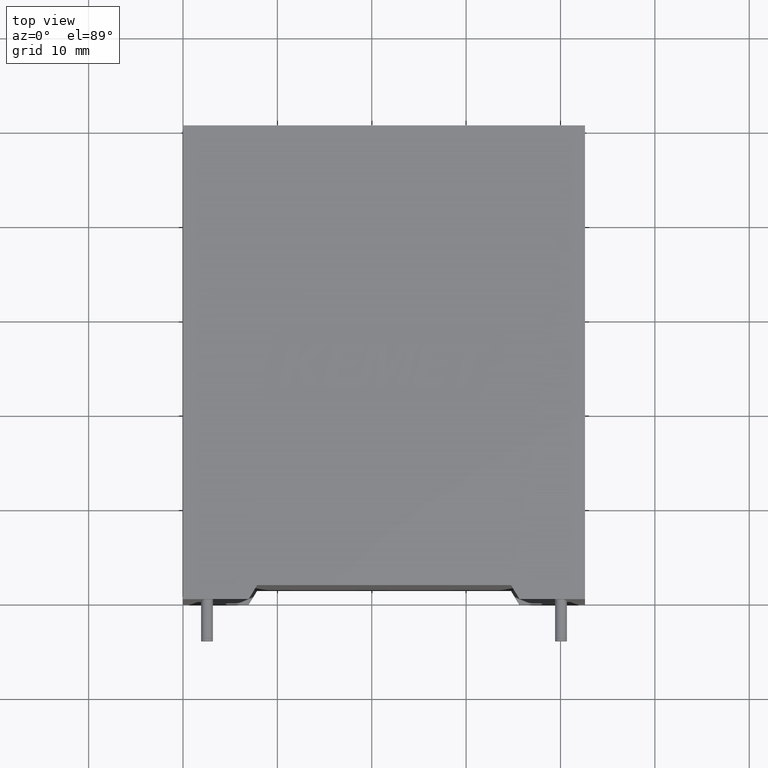
[diagram: clean part render]
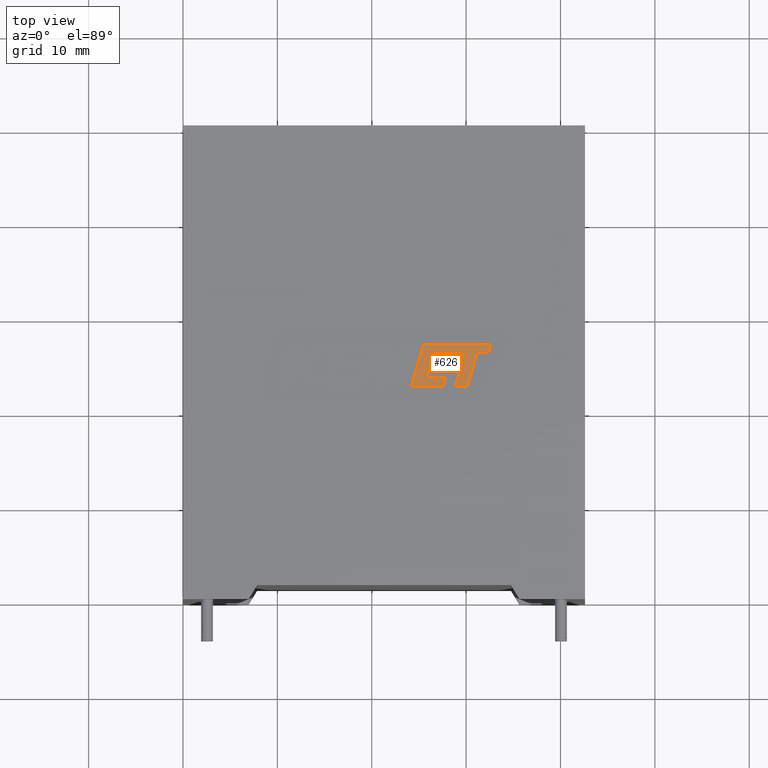
[diagram: same view with one face highlighted and labeled with its STEP entity id]
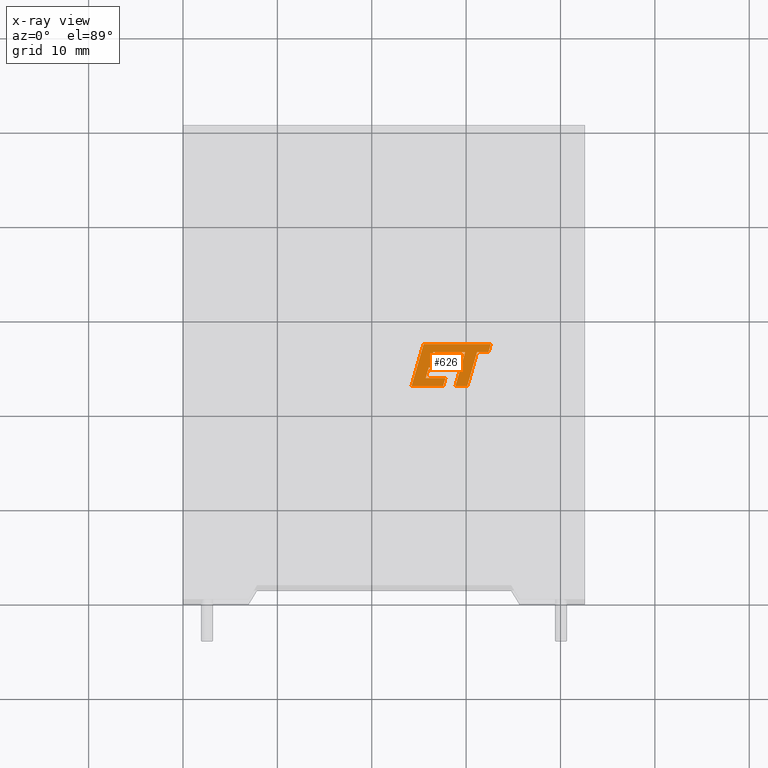
[diagram: x-ray of the same camera — body ghosted, the highlighted face saturated]
A machine part, top view. The second image highlights one B-rep face of the part: STEP entity #626.
The next image is the same camera in x-ray: the body ghosted, the highlighted face saturated — about 0% of this face is hidden behind the body in this view.
In plain terms, the highlighted planar face has unit normal (-0, 0, 1).
Its self-contained STEP definition (entity closure, byte-faithful):
#31 = CARTESIAN_POINT ( 'NONE',  ( 26.27200581737446300, 25.34103507756074300, 35.40500000000000100 ) ) ;
#40 = VECTOR ( 'NONE', #1872, 999.9999999999998900 ) ;
#72 = EDGE_CURVE ( 'NONE', #2575, #2313, #1224, .T. ) ;
#90 = VERTEX_POINT ( 'NONE', #2338 ) ;
#94 = VECTOR ( 'NONE', #1984, 1000.000000000000100 ) ;
#95 = EDGE_CURVE ( 'NONE', #90, #950, #2548, .T. ) ;
#114 = DIRECTION ( 'NONE',  ( -1.000000000000000000, 0.0000000000000000000, 0.0000000000000000000 ) ) ;
#121 = CARTESIAN_POINT ( 'NONE',  ( 32.61690448309159500, 27.01047267852247200, 35.40500000000000100 ) ) ;
#148 = CARTESIAN_POINT ( 'NONE',  ( 32.61690448309159500, 27.01047267852247200, 35.40500000000000100 ) ) ;
#155 = LINE ( 'NONE', #1199, #658 ) ;
#167 = DIRECTION ( 'NONE',  ( -1.000000000000000000, 0.0000000000000000000, 0.0000000000000000000 ) ) ;
#217 = VECTOR ( 'NONE', #490, 1000.000000000000100 ) ;
#241 = CARTESIAN_POINT ( 'NONE',  ( 25.72339385838279600, 23.41896462307432700, 35.40500000000000100 ) ) ;
#314 = ORIENTED_EDGE ( 'NONE', *, *, #1188, .T. ) ;
#323 = CARTESIAN_POINT ( 'NONE',  ( 28.54467650997437600, 26.16032509390190000, 35.40500000000000100 ) ) ;
#327 = VECTOR ( 'NONE', #3104, 999.9999999999998900 ) ;
#332 = CARTESIAN_POINT ( 'NONE',  ( 31.15634887918023200, 26.15405377866043300, 35.40500000000000100 ) ) ;
#366 = LINE ( 'NONE', #2290, #3108 ) ;
#401 = CARTESIAN_POINT ( 'NONE',  ( 27.57182693403756000, 22.57493999999988400, 35.40500000000000100 ) ) ;
#433 = EDGE_CURVE ( 'NONE', #3386, #1871, #3377, .T. ) ;
#490 = DIRECTION ( 'NONE',  ( 0.2745159998572472800, 0.9615825319869199000, 0.0000000000000000000 ) ) ;
#493 = LINE ( 'NONE', #1156, #1944 ) ;
#507 = VERTEX_POINT ( 'NONE', #121 ) ;
#509 = ORIENTED_EDGE ( 'NONE', *, *, #2356, .T. ) ;
#521 = VECTOR ( 'NONE', #1041, 1000.000000000000100 ) ;
#525 = VERTEX_POINT ( 'NONE', #2488 ) ;
#582 = VECTOR ( 'NONE', #2659, 999.9999999999998900 ) ;
#611 = ORIENTED_EDGE ( 'NONE', *, *, #95, .T. ) ;
#626 = ADVANCED_FACE ( 'NONE', ( #1799 ), #1208, .T. ) ;
#658 = VECTOR ( 'NONE', #695, 999.9999999999998900 ) ;
#668 = CARTESIAN_POINT ( 'NONE',  ( 26.51206906704381800, 26.16604345445730200, 35.40500000000000100 ) ) ;
#693 = CARTESIAN_POINT ( 'NONE',  ( 29.89313066474344200, 26.15405377867145700, 35.40500000000000100 ) ) ;
#695 = DIRECTION ( 'NONE',  ( 0.2746918797667528000, 0.9615323037684214700, 0.0000000000000000000 ) ) ;
#746 = EDGE_CURVE ( 'NONE', #2152, #3238, #1093, .T. ) ;
#867 = CARTESIAN_POINT ( 'NONE',  ( 24.22065186225110600, 22.57493999999988400, 35.40500000000000100 ) ) ;
#931 = LINE ( 'NONE', #1214, #2865 ) ;
#950 = VERTEX_POINT ( 'NONE', #867 ) ;
#1041 = DIRECTION ( 'NONE',  ( 0.9999891854650021500, -0.004650693823667352200, 0.0000000000000000000 ) ) ;
#1047 = ORIENTED_EDGE ( 'NONE', *, *, #433, .T. ) ;
#1059 = VECTOR ( 'NONE', #2577, 1000.000000000000200 ) ;
#1073 = EDGE_CURVE ( 'NONE', #507, #90, #1798, .T. ) ;
#1079 = VERTEX_POINT ( 'NONE', #2496 ) ;
#1093 = LINE ( 'NONE', #241, #217 ) ;
#1094 = LINE ( 'NONE', #3301, #94 ) ;
#1113 = CARTESIAN_POINT ( 'NONE',  ( 32.37075679330736500, 26.15395736867257200, 35.40500000000000100 ) ) ;
#1143 = EDGE_CURVE ( 'NONE', #1161, #2728, #1712, .T. ) ;
#1156 = CARTESIAN_POINT ( 'NONE',  ( 26.03806552924152100, 24.52120559324086100, 35.40500000000000100 ) ) ;
#1161 = VERTEX_POINT ( 'NONE', #1725 ) ;
#1182 = CARTESIAN_POINT ( 'NONE',  ( 28.17549160006052100, 25.34103507756074300, 35.40500000000000100 ) ) ;
#1188 = EDGE_CURVE ( 'NONE', #2313, #525, #1094, .T. ) ;
#1194 = LINE ( 'NONE', #3320, #2727 ) ;
#1199 = CARTESIAN_POINT ( 'NONE',  ( 27.94128157793912900, 24.52120559324086100, 35.40500000000000100 ) ) ;
#1208 = PLANE ( 'NONE',  #1276 ) ;
#1214 = CARTESIAN_POINT ( 'NONE',  ( 27.57182693403756000, 22.57493999999988400, 35.40500000000000100 ) ) ;
#1224 = LINE ( 'NONE', #2870, #521 ) ;
#1235 = DIRECTION ( 'NONE',  ( 1.000000000000000000, 0.0000000000000000000, 0.0000000000000000000 ) ) ;
#1276 = AXIS2_PLACEMENT_3D ( 'NONE', #3093, #3343, #2011 ) ;
#1290 = VECTOR ( 'NONE', #114, 1000.000000000000000 ) ;
#1353 = LINE ( 'NONE', #31, #2595 ) ;
#1369 = LINE ( 'NONE', #1113, #582 ) ;
#1411 = DIRECTION ( 'NONE',  ( 1.000000000000000000, 0.0000000000000000000, 0.0000000000000000000 ) ) ;
#1526 = ORIENTED_EDGE ( 'NONE', *, *, #2807, .T. ) ;
#1612 = CARTESIAN_POINT ( 'NONE',  ( 30.12761042085275800, 22.57493999999988400, 35.40500000000000100 ) ) ;
#1656 = LINE ( 'NONE', #2353, #40 ) ;
#1683 = VERTEX_POINT ( 'NONE', #401 ) ;
#1694 = CARTESIAN_POINT ( 'NONE',  ( 31.15634887918023200, 26.15405377866043300, 35.40500000000000100 ) ) ;
#1712 = LINE ( 'NONE', #1182, #1290 ) ;
#1723 = EDGE_CURVE ( 'NONE', #1683, #1079, #931, .T. ) ;
#1725 = CARTESIAN_POINT ( 'NONE',  ( 28.17549160006052100, 25.34103507756074300, 35.40500000000000100 ) ) ;
#1798 = LINE ( 'NONE', #148, #2046 ) ;
#1799 = FACE_OUTER_BOUND ( 'NONE', #2741, .T. ) ;
#1871 = VERTEX_POINT ( 'NONE', #2909 ) ;
#1872 = DIRECTION ( 'NONE',  ( 0.2762437428917328100, 0.9610876102172820600, 0.0000000000000000000 ) ) ;
#1882 = CARTESIAN_POINT ( 'NONE',  ( 27.94128157793912900, 24.52120559324086100, 35.40500000000000100 ) ) ;
#1904 = ORIENTED_EDGE ( 'NONE', *, *, #72, .T. ) ;
#1923 = EDGE_CURVE ( 'NONE', #1871, #507, #1369, .T. ) ;
#1936 = ORIENTED_EDGE ( 'NONE', *, *, #2630, .T. ) ;
#1944 = VECTOR ( 'NONE', #1411, 1000.000000000000000 ) ;
#1984 = DIRECTION ( 'NONE',  ( -0.2763173343569894600, -0.9610664548998927300, 0.0000000000000000000 ) ) ;
#2007 = DIRECTION ( 'NONE',  ( -1.000000000000000000, -9.064081856670371200E-016, 0.0000000000000000000 ) ) ;
#2010 = EDGE_CURVE ( 'NONE', #2636, #3386, #1656, .T. ) ;
#2011 = DIRECTION ( 'NONE',  ( 1.000000000000000000, 0.0000000000000000000, 0.0000000000000000000 ) ) ;
#2046 = VECTOR ( 'NONE', #2007, 1000.000000000000000 ) ;
#2057 = ORIENTED_EDGE ( 'NONE', *, *, #1143, .T. ) ;
#2113 = VERTEX_POINT ( 'NONE', #1882 ) ;
#2152 = VERTEX_POINT ( 'NONE', #3247 ) ;
#2169 = DIRECTION ( 'NONE',  ( 0.2793947940814967600, 0.9601763114346021400, 0.0000000000000000000 ) ) ;
#2208 = EDGE_CURVE ( 'NONE', #3238, #2113, #493, .T. ) ;
#2275 = CARTESIAN_POINT ( 'NONE',  ( 26.51206906704381800, 26.16604345445730200, 35.40500000000000100 ) ) ;
#2290 = CARTESIAN_POINT ( 'NONE',  ( 27.81132374233068600, 23.41896462307432700, 35.40500000000000100 ) ) ;
#2313 = VERTEX_POINT ( 'NONE', #693 ) ;
#2329 = EDGE_CURVE ( 'NONE', #525, #2636, #1194, .T. ) ;
#2338 = CARTESIAN_POINT ( 'NONE',  ( 25.49646665750985300, 27.01047267852246800, 35.40500000000000100 ) ) ;
#2340 = ORIENTED_EDGE ( 'NONE', *, *, #1723, .T. ) ;
#2353 = CARTESIAN_POINT ( 'NONE',  ( 30.12761042085275800, 22.57493999999988400, 35.40500000000000100 ) ) ;
#2356 = EDGE_CURVE ( 'NONE', #3354, #2575, #3223, .T. ) ;
#2360 = ORIENTED_EDGE ( 'NONE', *, *, #2448, .T. ) ;
#2385 = ORIENTED_EDGE ( 'NONE', *, *, #2624, .T. ) ;
#2424 = CARTESIAN_POINT ( 'NONE',  ( 26.03806552924152100, 24.52120559324086100, 35.40500000000000100 ) ) ;
#2448 = EDGE_CURVE ( 'NONE', #1079, #2152, #366, .T. ) ;
#2454 = DIRECTION ( 'NONE',  ( 0.9999999968487352000, -7.938847107242143300E-005, 0.0000000000000000000 ) ) ;
#2488 = CARTESIAN_POINT ( 'NONE',  ( 28.86409549902650400, 22.57493999999988400, 35.40500000000000100 ) ) ;
#2496 = CARTESIAN_POINT ( 'NONE',  ( 27.81132374233068600, 23.41896462307432700, 35.40500000000000100 ) ) ;
#2548 = LINE ( 'NONE', #2878, #1059 ) ;
#2571 = ORIENTED_EDGE ( 'NONE', *, *, #2329, .T. ) ;
#2575 = VERTEX_POINT ( 'NONE', #323 ) ;
#2577 = DIRECTION ( 'NONE',  ( -0.2764273280489751300, -0.9610348236706639500, 0.0000000000000000000 ) ) ;
#2595 = VECTOR ( 'NONE', #2169, 1000.000000000000100 ) ;
#2624 = EDGE_CURVE ( 'NONE', #2728, #3354, #1353, .T. ) ;
#2629 = VECTOR ( 'NONE', #2454, 1000.000000000000100 ) ;
#2630 = EDGE_CURVE ( 'NONE', #950, #1683, #2682, .T. ) ;
#2636 = VERTEX_POINT ( 'NONE', #1612 ) ;
#2659 = DIRECTION ( 'NONE',  ( 0.2762033010288772500, 0.9610992334305296100, 0.0000000000000000000 ) ) ;
#2680 = ORIENTED_EDGE ( 'NONE', *, *, #1073, .T. ) ;
#2682 = LINE ( 'NONE', #3299, #3306 ) ;
#2727 = VECTOR ( 'NONE', #3073, 1000.000000000000000 ) ;
#2728 = VERTEX_POINT ( 'NONE', #2792 ) ;
#2741 = EDGE_LOOP ( 'NONE', ( #509, #1904, #314, #2571, #2888, #1047, #3409, #2680, #611, #1936, #2340, #2360, #3153, #3351, #1526, #2057, #2385 ) ) ;
#2792 = CARTESIAN_POINT ( 'NONE',  ( 26.27200581737446300, 25.34103507756074300, 35.40500000000000100 ) ) ;
#2807 = EDGE_CURVE ( 'NONE', #2113, #1161, #155, .T. ) ;
#2865 = VECTOR ( 'NONE', #3183, 1000.000000000000100 ) ;
#2870 = CARTESIAN_POINT ( 'NONE',  ( 28.54467650997437600, 26.16032509390190000, 35.40500000000000100 ) ) ;
#2878 = CARTESIAN_POINT ( 'NONE',  ( 25.49646665750985300, 27.01047267852246800, 35.40500000000000100 ) ) ;
#2888 = ORIENTED_EDGE ( 'NONE', *, *, #2010, .T. ) ;
#2909 = CARTESIAN_POINT ( 'NONE',  ( 32.37075679330736500, 26.15395736867257200, 35.40500000000000100 ) ) ;
#3073 = DIRECTION ( 'NONE',  ( 1.000000000000000000, 0.0000000000000000000, 0.0000000000000000000 ) ) ;
#3093 = CARTESIAN_POINT ( 'NONE',  ( -0.1503410928526370500, 0.3518460167495629500, 35.40500000000000100 ) ) ;
#3104 = DIRECTION ( 'NONE',  ( 0.9999960426590096500, -0.002813301676026588700, 0.0000000000000000000 ) ) ;
#3108 = VECTOR ( 'NONE', #167, 1000.000000000000000 ) ;
#3153 = ORIENTED_EDGE ( 'NONE', *, *, #746, .T. ) ;
#3183 = DIRECTION ( 'NONE',  ( 0.2729786930695448600, 0.9620200793798656700, 0.0000000000000000000 ) ) ;
#3223 = LINE ( 'NONE', #668, #327 ) ;
#3238 = VERTEX_POINT ( 'NONE', #2424 ) ;
#3247 = CARTESIAN_POINT ( 'NONE',  ( 25.72339385838279600, 23.41896462307432700, 35.40500000000000100 ) ) ;
#3299 = CARTESIAN_POINT ( 'NONE',  ( 24.22065186225110600, 22.57493999999988400, 35.40500000000000100 ) ) ;
#3301 = CARTESIAN_POINT ( 'NONE',  ( 29.89313066474344200, 26.15405377867145700, 35.40500000000000100 ) ) ;
#3306 = VECTOR ( 'NONE', #1235, 1000.000000000000000 ) ;
#3320 = CARTESIAN_POINT ( 'NONE',  ( 28.86409549902650400, 22.57493999999988400, 35.40500000000000100 ) ) ;
#3343 = DIRECTION ( 'NONE',  ( -0.0000000000000000000, 0.0000000000000000000, 1.000000000000000000 ) ) ;
#3351 = ORIENTED_EDGE ( 'NONE', *, *, #2208, .T. ) ;
#3354 = VERTEX_POINT ( 'NONE', #2275 ) ;
#3377 = LINE ( 'NONE', #332, #2629 ) ;
#3386 = VERTEX_POINT ( 'NONE', #1694 ) ;
#3409 = ORIENTED_EDGE ( 'NONE', *, *, #1923, .T. ) ;